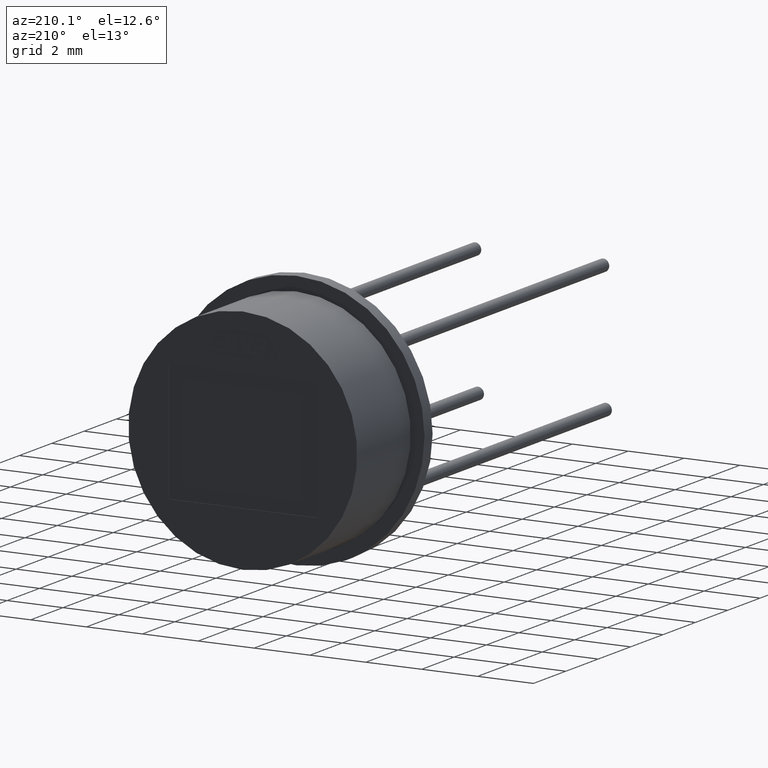
[diagram: clean part render]
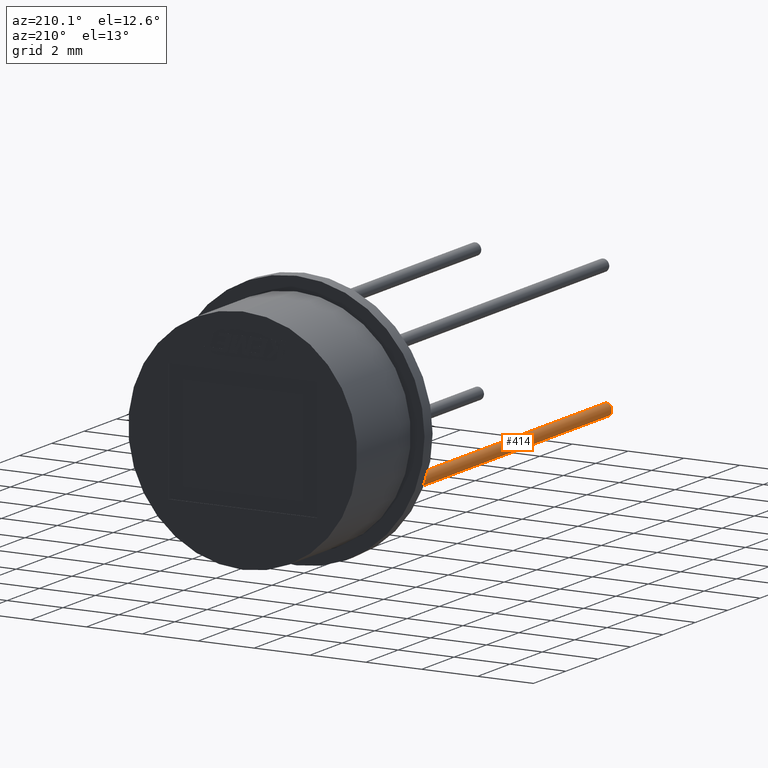
[diagram: same view with one face highlighted and labeled with its STEP entity id]
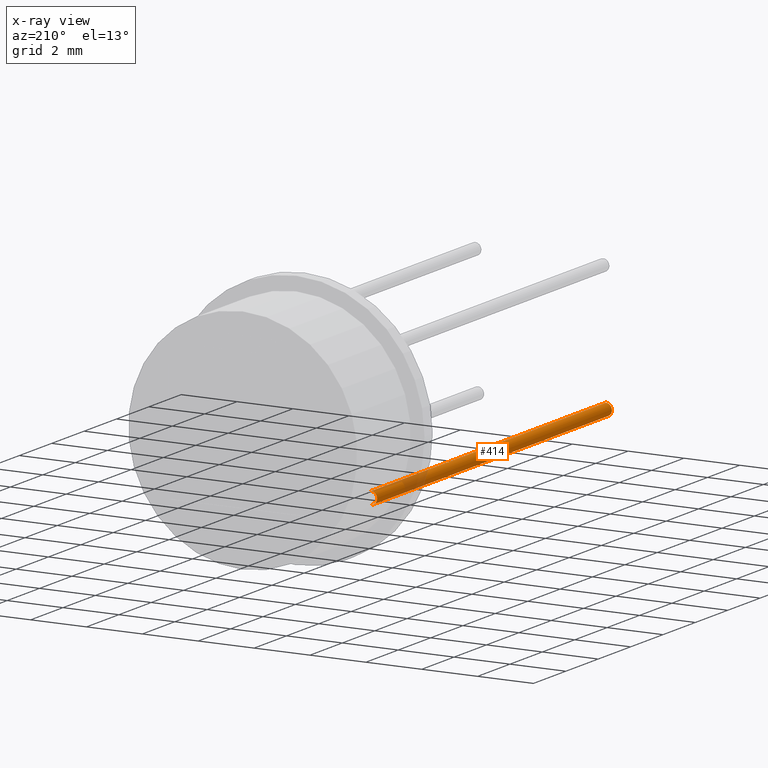
[diagram: x-ray of the same camera — body ghosted, the highlighted face saturated]
A machine part, auxiliary view. The second image highlights one B-rep face of the part: STEP entity #414.
The next image is the same camera in x-ray: the body ghosted, the highlighted face saturated — about 11% of this face is hidden behind the body in this view.
In plain terms, the highlighted cylindrical surface (edge-blend (fillet) strip) has radius 0.215 mm, axis along (-0, 1, -0).
Its self-contained STEP definition (entity closure, byte-faithful):
#113 = LINE ( 'NONE', #973, #2533 ) ;
#183 = AXIS2_PLACEMENT_3D ( 'NONE', #1625, #753, #2159 ) ;
#192 = CARTESIAN_POINT ( 'NONE',  ( -2.392499999999999627, -14.50000000000000000, -2.069999999999999396 ) ) ;
#262 = DIRECTION ( 'NONE',  ( -0.000000000000000000, 1.000000000000000000, -0.000000000000000000 ) ) ;
#272 = VERTEX_POINT ( 'NONE', #3416 ) ;
#414 = ADVANCED_FACE ( 'NONE', ( #3429 ), #3481, .T. ) ;
#586 = VECTOR ( 'NONE', #1618, 1000.000000000000000 ) ;
#679 = DIRECTION ( 'NONE',  ( -0.000000000000000000, 1.000000000000000000, -0.000000000000000000 ) ) ;
#712 = DIRECTION ( 'NONE',  ( 0.000000000000000000, 0.000000000000000000, 1.000000000000000000 ) ) ;
#753 = DIRECTION ( 'NONE',  ( 0.000000000000000000, -1.000000000000000000, 0.000000000000000000 ) ) ;
#785 = VERTEX_POINT ( 'NONE', #1724 ) ;
#879 = CARTESIAN_POINT ( 'NONE',  ( -2.392499999999999627, -14.50000000000000000, -2.284999999999999254 ) ) ;
#973 = CARTESIAN_POINT ( 'NONE',  ( -2.392499999999999627, -14.50000000000000000, -2.499999999999999112 ) ) ;
#1114 = DIRECTION ( 'NONE',  ( 0.000000000000000000, 0.000000000000000000, 1.000000000000000000 ) ) ;
#1370 = LINE ( 'NONE', #192, #586 ) ;
#1430 = ORIENTED_EDGE ( 'NONE', *, *, #2453, .T. ) ;
#1618 = DIRECTION ( 'NONE',  ( -0.000000000000000000, 1.000000000000000000, -0.000000000000000000 ) ) ;
#1625 = CARTESIAN_POINT ( 'NONE',  ( -2.392499999999999627, -14.50000000000000000, -2.284999999999999254 ) ) ;
#1724 = CARTESIAN_POINT ( 'NONE',  ( -2.392499999999999627, -14.50000000000000000, -2.069999999999999396 ) ) ;
#1807 = AXIS2_PLACEMENT_3D ( 'NONE', #2173, #3328, #712 ) ;
#1813 = CIRCLE ( 'NONE', #183, 0.2149999999999999134 ) ;
#1938 = EDGE_CURVE ( 'NONE', #785, #2693, #1370, .T. ) ;
#2104 = CARTESIAN_POINT ( 'NONE',  ( -2.392499999999999627, 0.000000000000000000, -2.499999999999999112 ) ) ;
#2159 = DIRECTION ( 'NONE',  ( 0.000000000000000000, 0.000000000000000000, -1.000000000000000000 ) ) ;
#2173 = CARTESIAN_POINT ( 'NONE',  ( -2.392499999999999627, 0.000000000000000000, -2.284999999999999254 ) ) ;
#2231 = ORIENTED_EDGE ( 'NONE', *, *, #2929, .F. ) ;
#2342 = EDGE_CURVE ( 'NONE', #272, #2825, #113, .T. ) ;
#2437 = EDGE_LOOP ( 'NONE', ( #3418, #2231, #3695, #1430 ) ) ;
#2453 = EDGE_CURVE ( 'NONE', #2693, #2825, #3212, .T. ) ;
#2533 = VECTOR ( 'NONE', #679, 1000.000000000000000 ) ;
#2693 = VERTEX_POINT ( 'NONE', #3094 ) ;
#2825 = VERTEX_POINT ( 'NONE', #2104 ) ;
#2929 = EDGE_CURVE ( 'NONE', #785, #272, #1813, .T. ) ;
#3045 = AXIS2_PLACEMENT_3D ( 'NONE', #879, #262, #1114 ) ;
#3094 = CARTESIAN_POINT ( 'NONE',  ( -2.392499999999999627, 0.000000000000000000, -2.069999999999999396 ) ) ;
#3212 = CIRCLE ( 'NONE', #1807, 0.2149999999999999134 ) ;
#3328 = DIRECTION ( 'NONE',  ( -0.000000000000000000, -1.000000000000000000, -0.000000000000000000 ) ) ;
#3416 = CARTESIAN_POINT ( 'NONE',  ( -2.392499999999999627, -14.50000000000000000, -2.499999999999999112 ) ) ;
#3418 = ORIENTED_EDGE ( 'NONE', *, *, #2342, .F. ) ;
#3429 = FACE_OUTER_BOUND ( 'NONE', #2437, .T. ) ;
#3481 = CYLINDRICAL_SURFACE ( 'NONE', #3045, 0.2149999999999999134 ) ;
#3695 = ORIENTED_EDGE ( 'NONE', *, *, #1938, .T. ) ;